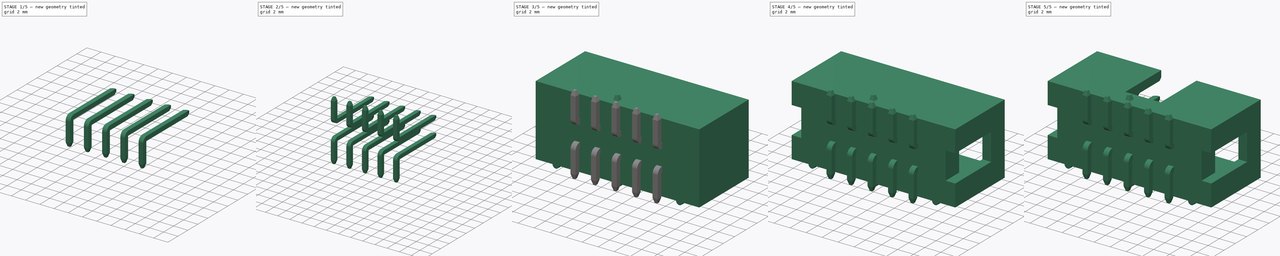
[diagram: build sequence overview — one tinted view per stage of 5, left to right]
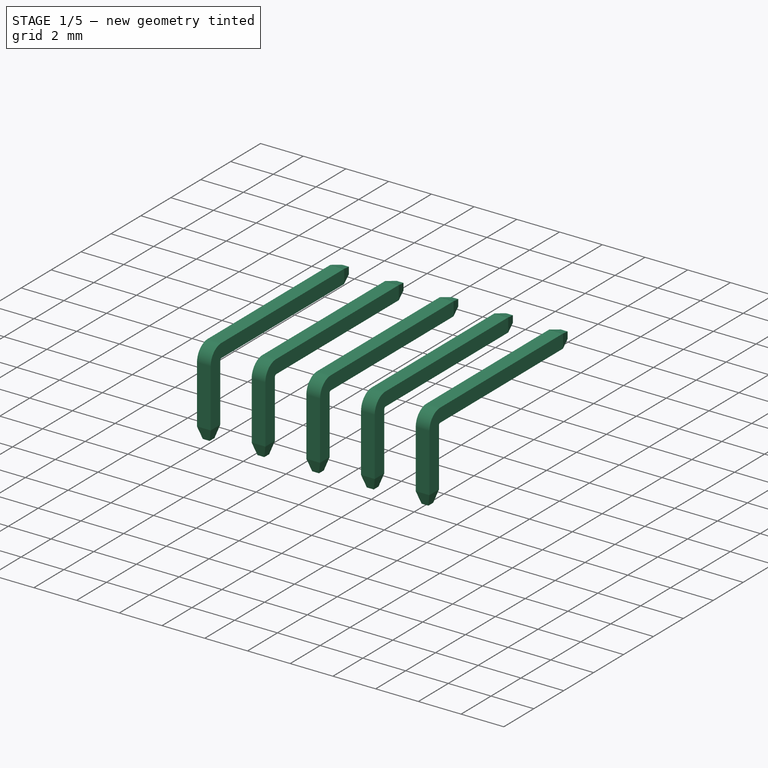
[diagram: stage 1 of 5 — iso view after this stage's code; geometry added in this stage tinted green]
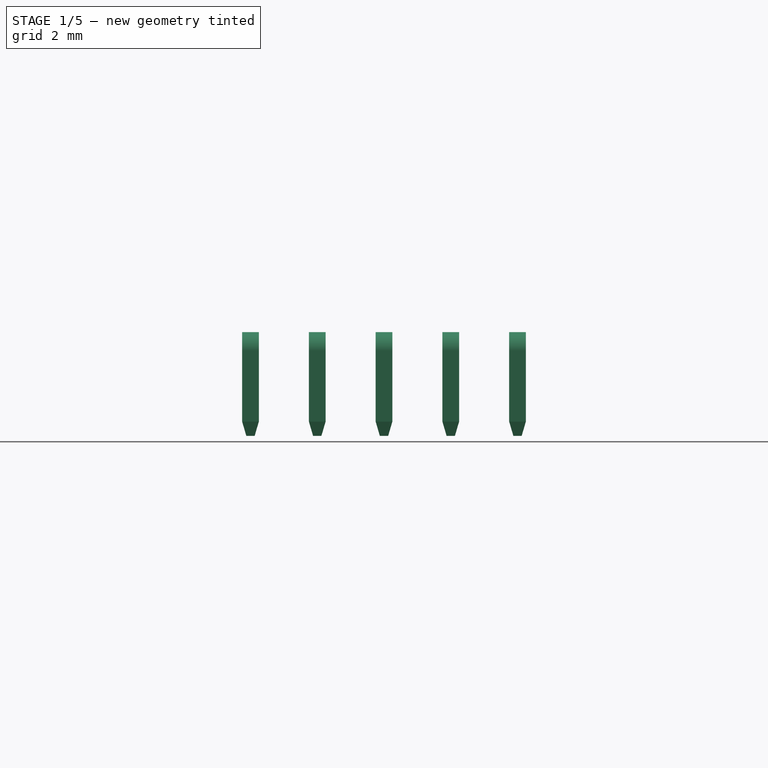
[diagram: stage 1 of 5 — front view after this stage's code; geometry added in this stage tinted green]
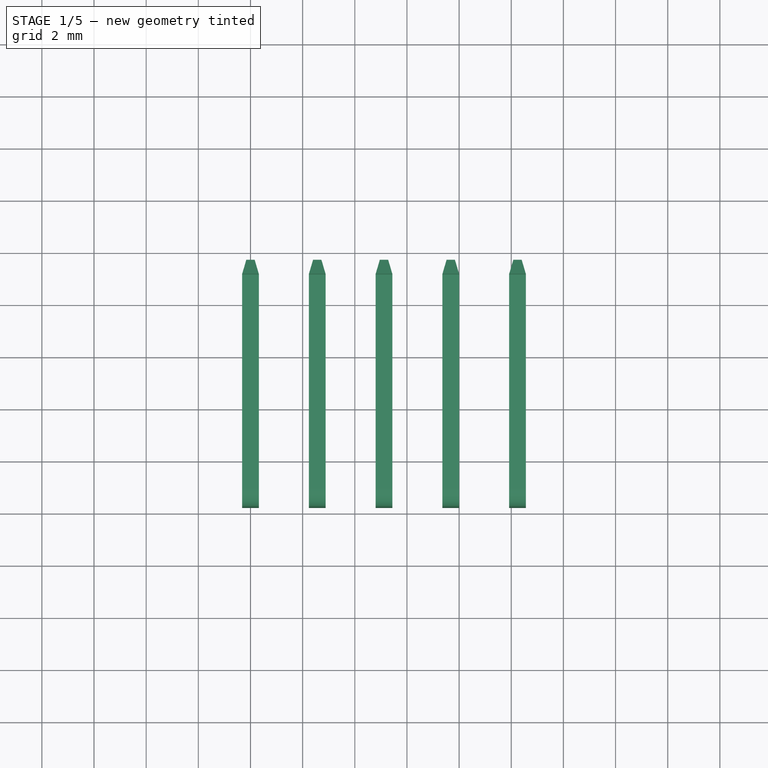
[diagram: stage 1 of 5 — top view after this stage's code; geometry added in this stage tinted green]
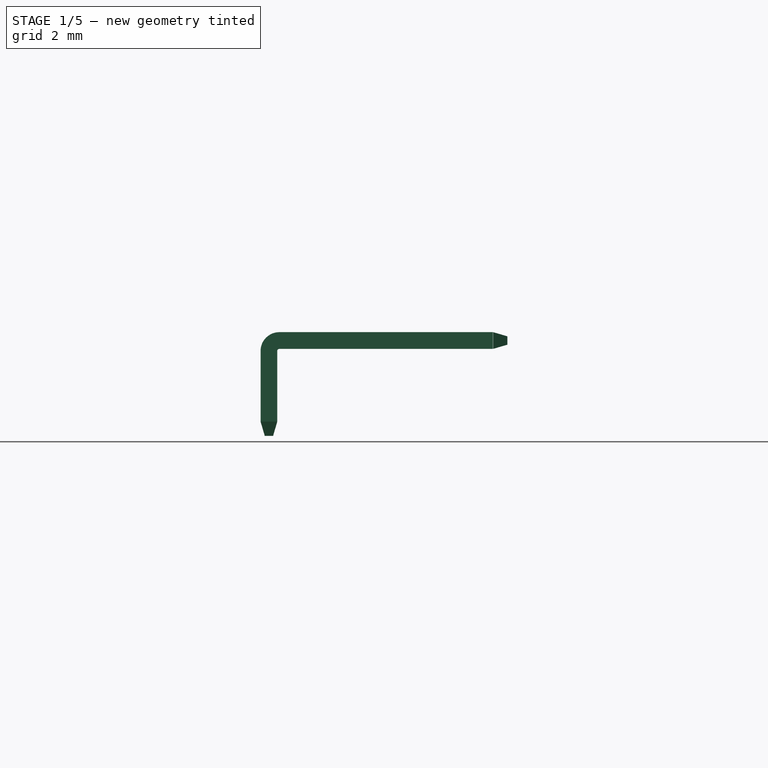
[diagram: stage 1 of 5 — right view after this stage's code; geometry added in this stage tinted green]
FCSTD DOCUMENT  (FreeCAD 0.16R5262 (Git))
Label: 2x5-pin-box-header-right-angle-short
License: CreativeCommons Attribution-ShareAlike
LicenseURL: http://creativecommons.org/licenses/by-sa/4.0/
objects: Sketcher::SketchObject×10, PartDesign::Pocket×4, Part::Feature×4, Part::MultiFuse×3, Part::FeaturePython×3, PartDesign::Pad×2, App::DocumentObjectGroup×2, Part::Chamfer×1, Part::Loft×1, Part::Sweep×1
note: 35 computed .brp shape members not serialized (recipe doc carries the construction recipe); baked Part::Feature solids carry a one-line shape summary decoded from their .brp

FEATURE [Part::Feature] Loft003  label="pin-end003"
  Placement = pos=(0,8.6,6.46) rot=(-1,0,0;1.5708rad)
  shape: bbox 0.64 x 0.546 x 0.64 mm, 6 faces (baked)
FEATURE [Part::Feature] Loft004  label="pin-end004"
  Placement = pos=(0,0,3.35) rot=(1,0,0;3.14159rad)
  shape: bbox 0.64 x 0.64 x 0.546 mm, 6 faces (baked)
FEATURE [Sketcher::SketchObject] Sketch010  label="bottom-pin-path"
  Placement = pos=(0,0,0) rot=(0.57735,0.57735,0.57735;2.0944rad)
  sketch-geometry (3):
    g0: LineSegment StartX=0.4 StartY=6.46 StartZ=0 EndX=8.6 EndY=6.46 EndZ=0
    g1: ArcOfCircle CenterX=0.4 CenterY=6.06 CenterZ=0 NormalX=0 NormalY=0 NormalZ=1 Radius=0.4 StartAngle=1.5708 EndAngle=3.14159
    g2: LineSegment StartX=0 StartY=6.06 StartZ=0 EndX=0 EndY=3.36 EndZ=0
  constraints (10):
    c: Horizontal(g0)
    c: Tangent(g0,g1)
    c: Radius(g1) = 0.4
    c: DistanceY(g-1,g0) = 6.46
    c: DistanceX(g0) = 8.2
    c: Coincident(g2,g1)
    c: Vertical(g2)
    c: PointOnObject(g2,g-2)
    c: DistanceY(g2) = -2.7
    c: DistanceY(g1) = 6.06
FEATURE [Part::Sweep] Sweep001  label="bottom-pin-main"
  Frenet = true
  Sections = -> [Sketch006]
  Solid = true
  Spine = -> Sketch010
  Transition = 1
FEATURE [Part::MultiFuse] Fusion001  label="bottom-pin-master-src"
  Placement = pos=(0,2.54,0) rot=(0,0,1;0rad)
  Shapes = -> [Loft004,Sweep001,Loft003]
FEATURE [App::DocumentObjectGroup] Group001  label="pin-src"
  Group = -> [Loft,Sketch010,Fusion001]
FEATURE [Part::FeaturePython] Array  # Draft array (typed FeaturePython)
  Angle = 360
  ArrayType = 0
  Axis = (0,0,1)
  Base = -> Fusion001
  Center = (0,0,0)
  Fuse = false
  IntervalAxis = (0,0,0)
  IntervalX = (2.56,0,0)
  IntervalY = (0,1,0)
  IntervalZ = (0,0,0)
  NumberPolar = 1
  NumberX = 5
  NumberY = 1
  NumberZ = 1
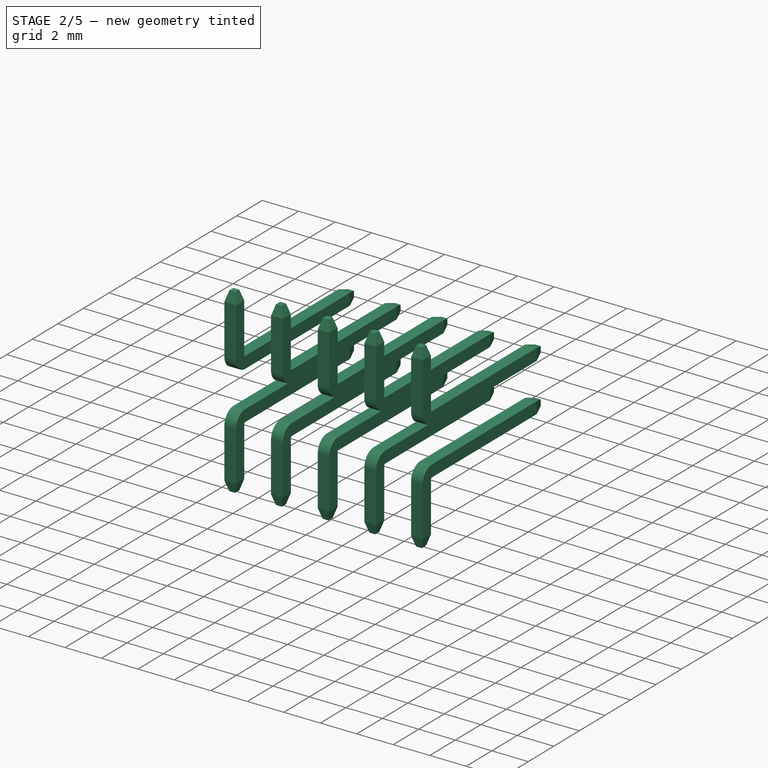
[diagram: stage 2 of 5 — iso view after this stage's code; geometry added in this stage tinted green]
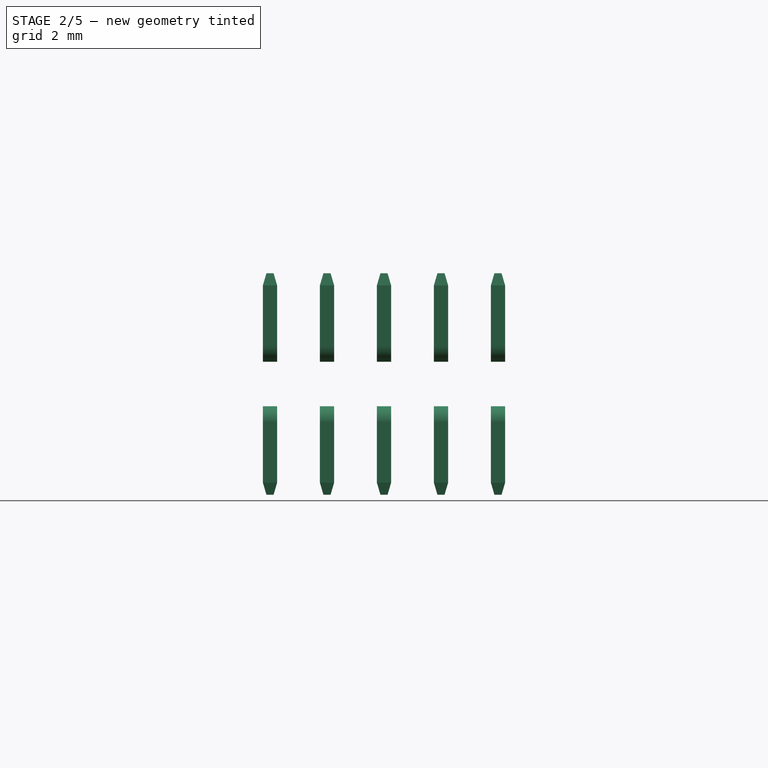
[diagram: stage 2 of 5 — front view after this stage's code; geometry added in this stage tinted green]
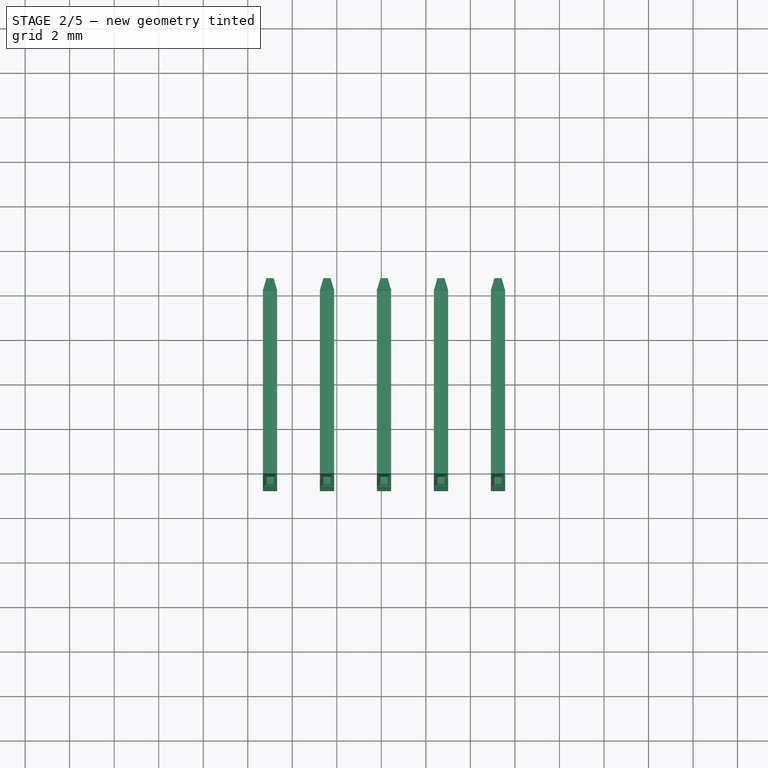
[diagram: stage 2 of 5 — top view after this stage's code; geometry added in this stage tinted green]
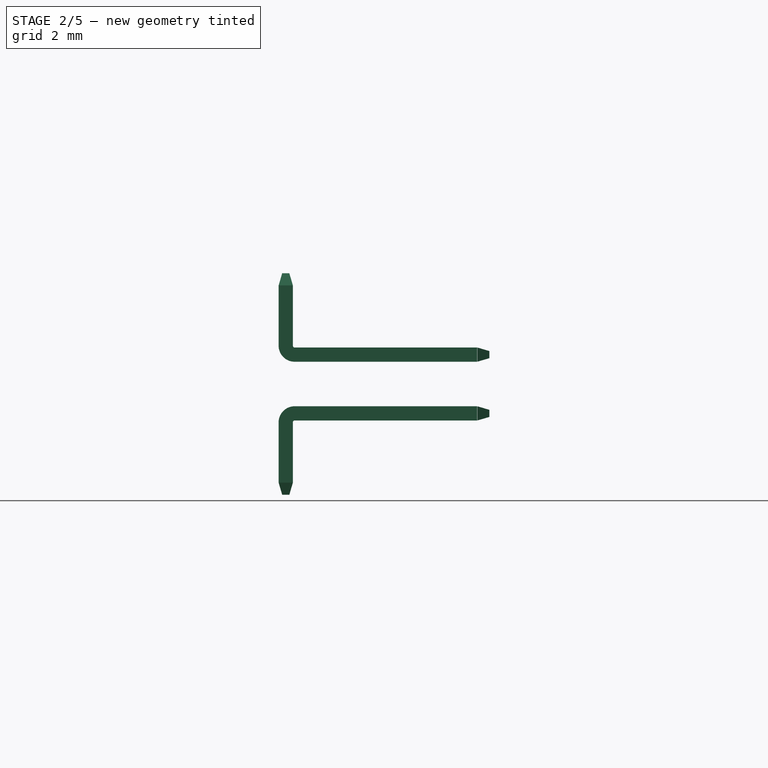
[diagram: stage 2 of 5 — right view after this stage's code; geometry added in this stage tinted green]
FEATURE [Part::FeaturePython] Clone  label="Clone of Array"  # Draft clone (typed FeaturePython)
  Objects = -> [Array]
  Placement = pos=(10.24,0,15.56) rot=(0,1,0;3.14159rad)
  Scale = (1,1,1)
FEATURE [Part::MultiFuse] Fusion  label="2x5_"
  Shapes = -> [Array,Clone]
FEATURE [Part::FeaturePython] Clone001  label="Clone of 2x5_"  # Draft clone (typed FeaturePython)
  Objects = -> [Fusion]
  Placement = pos=(-5,-3,-7.8) rot=(0,0,1;0rad)
  Scale = (1,1,1)
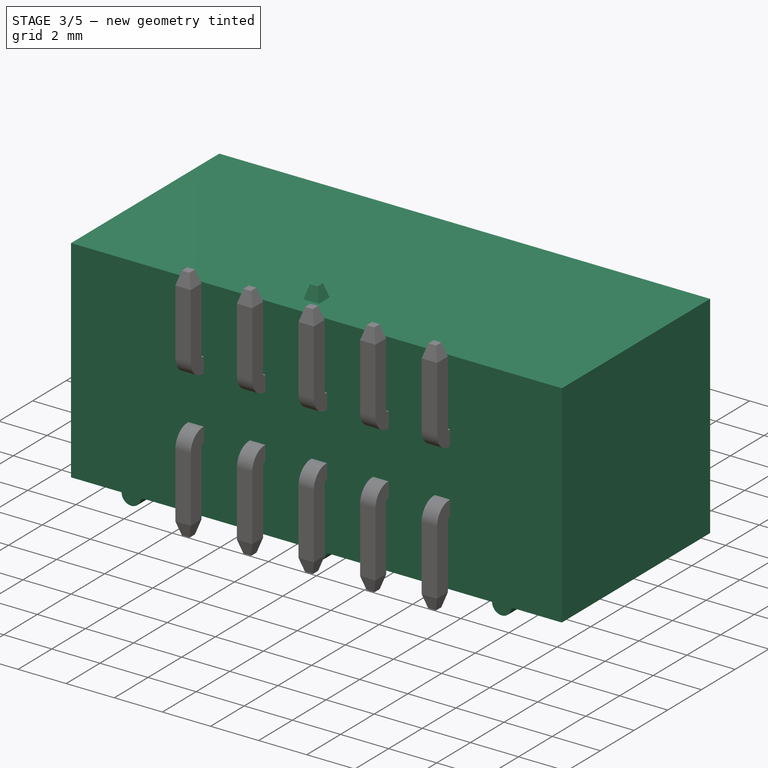
[diagram: stage 3 of 5 — iso view after this stage's code; geometry added in this stage tinted green]
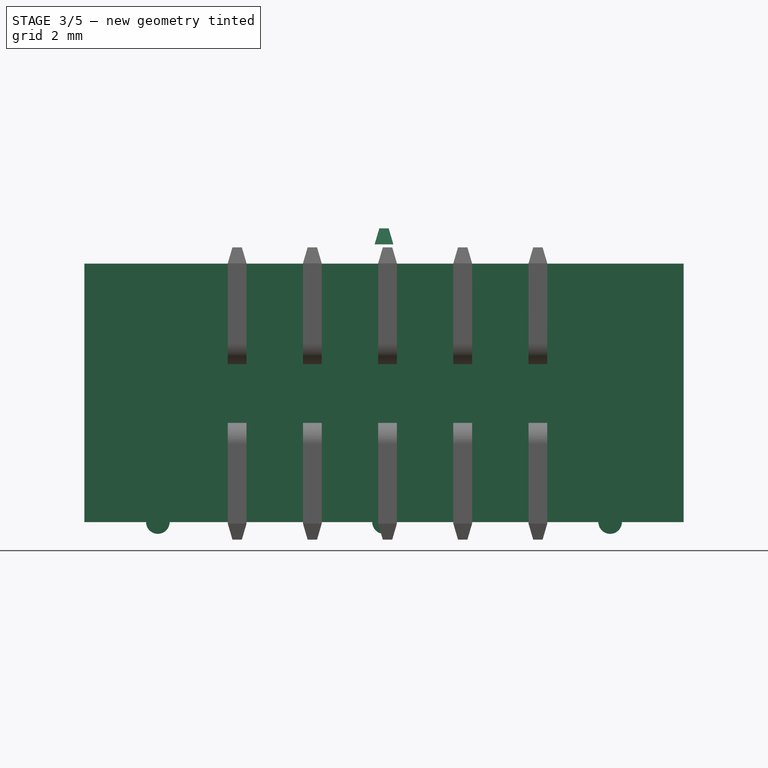
[diagram: stage 3 of 5 — front view after this stage's code; geometry added in this stage tinted green]
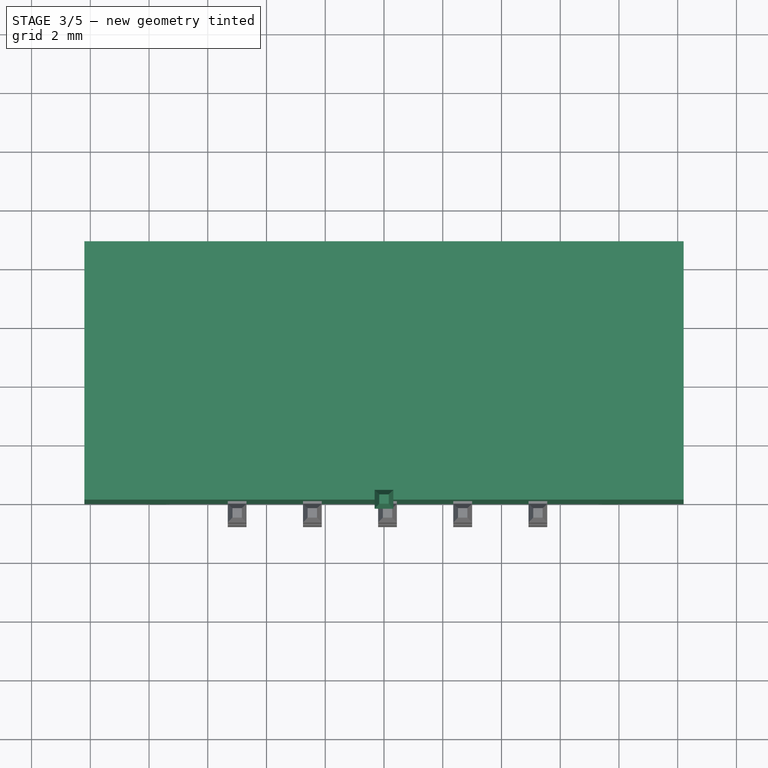
[diagram: stage 3 of 5 — top view after this stage's code; geometry added in this stage tinted green]
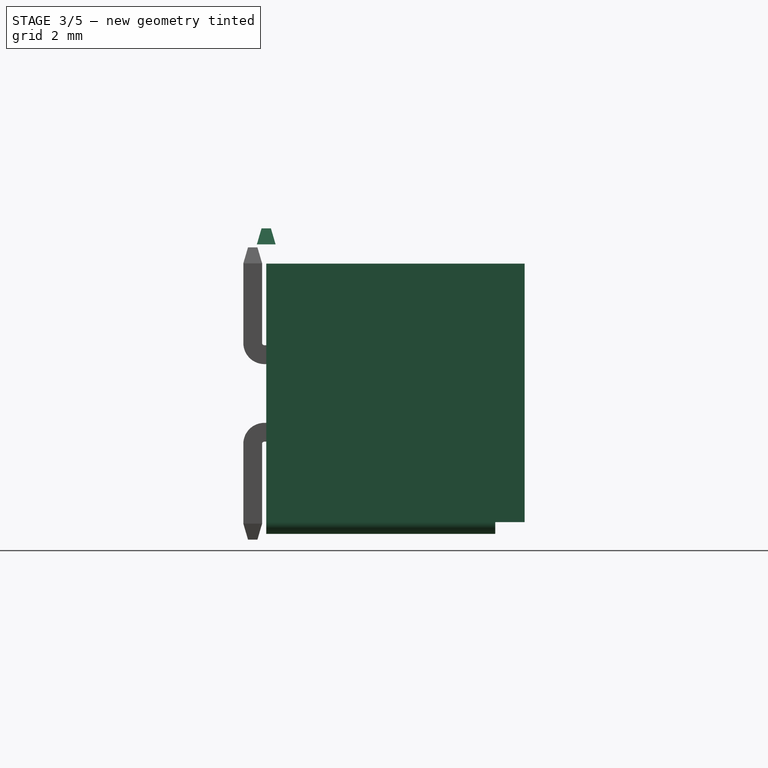
[diagram: stage 3 of 5 — right view after this stage's code; geometry added in this stage tinted green]
FEATURE [Sketcher::SketchObject] Sketch001  label="main-body-sketch"
  Placement = pos=(0,0,0) rot=(-1,0,0;1.5708rad)
  sketch-geometry (4):
    g0: LineSegment StartX=-10.2 StartY=4.4 StartZ=0 EndX=10.2 EndY=4.4 EndZ=0
    g1: LineSegment StartX=10.2 StartY=4.4 StartZ=0 EndX=10.2 EndY=-4.4 EndZ=0
    g2: LineSegment StartX=10.2 StartY=-4.4 StartZ=0 EndX=-10.2 EndY=-4.4 EndZ=0
    g3: LineSegment StartX=-10.2 StartY=-4.4 StartZ=0 EndX=-10.2 EndY=4.4 EndZ=0
  constraints (11):
    c: Coincident(g0,g1)
    c: Coincident(g1,g2)
    c: Coincident(g2,g3)
    c: Coincident(g3,g0)
    c: Horizontal(g0)
    c: Horizontal(g2)
    c: Vertical(g1)
    c: Vertical(g3)
    c: Symmetric(g0,g1,g-1)
    c: DistanceX(g0) = 20.4
    c: DistanceY(g3) = 8.8
FEATURE [PartDesign::Pad] Pad  label="main-body"
  Length = 8.8
  Length2 = 100
  Placement = pos=(0,0,0) rot=(-1,0,0;1.5708rad)
  Sketch = -> Sketch001
  Type = 0
FEATURE [App::DocumentObjectGroup] Group  label="box-src"
  Group = -> [Pad,Pocket,Pocket001,Pocket002,Chamfer,Pad001]
FEATURE [Part::Feature] Pad001001  label="box"
  shape: bbox 20.4 x 8.8 x 9.2 mm, 33 faces (baked)
FEATURE [Sketcher::SketchObject] Sketch006  label="pin-base-sketch"
  Placement = pos=(0,0,3.35) rot=(0,0,1;0rad)
  sketch-geometry (4):
    g0: LineSegment StartX=-0.32 StartY=0.32 StartZ=0 EndX=0.32 EndY=0.32 EndZ=0
    g1: LineSegment StartX=0.32 StartY=0.32 StartZ=0 EndX=0.32 EndY=-0.32 EndZ=0
    g2: LineSegment StartX=0.32 StartY=-0.32 StartZ=0 EndX=-0.32 EndY=-0.32 EndZ=0
    g3: LineSegment StartX=-0.32 StartY=-0.32 StartZ=0 EndX=-0.32 EndY=0.32 EndZ=0
  constraints (11):
    c: Coincident(g0,g1)
    c: Coincident(g1,g2)
    c: Coincident(g2,g3)
    c: Coincident(g3,g0)
    c: Horizontal(g0)
    c: Horizontal(g2)
    c: Vertical(g1)
    c: Vertical(g3)
    c: Symmetric(g0,g1,g-1)
    c: Equal(g0,g3)
    c: DistanceX(g0) = 0.64
FEATURE [Sketcher::SketchObject] Sketch008  label="pin-end-bottom-base-sketch"
  sketch-geometry (4):
    g0: LineSegment StartX=-0.32 StartY=0.32 StartZ=0 EndX=0.32 EndY=0.32 EndZ=0
    g1: LineSegment StartX=0.32 StartY=0.32 StartZ=0 EndX=0.32 EndY=-0.32 EndZ=0
    g2: LineSegment StartX=0.32 StartY=-0.32 StartZ=0 EndX=-0.32 EndY=-0.32 EndZ=0
    g3: LineSegment StartX=-0.32 StartY=-0.32 StartZ=0 EndX=-0.32 EndY=0.32 EndZ=0
  constraints (11):
    c: Coincident(g0,g1)
    c: Coincident(g1,g2)
    c: Coincident(g2,g3)
    c: Coincident(g3,g0)
    c: Horizontal(g0)
    c: Horizontal(g2)
    c: Vertical(g1)
    c: Vertical(g3)
    c: Symmetric(g0,g1,g-1)
    c: Equal(g0,g3)
    c: DistanceX(g0) = 0.64
FEATURE [Sketcher::SketchObject] Sketch009  label="pin-end-top-base-sketch"
  Placement = pos=(0,0,0.546) rot=(0,0,1;0rad)
  sketch-geometry (4):
    g0: LineSegment StartX=-0.16 StartY=0.16 StartZ=0 EndX=0.16 EndY=0.16 EndZ=0
    g1: LineSegment StartX=0.16 StartY=0.16 StartZ=0 EndX=0.16 EndY=-0.16 EndZ=0
    g2: LineSegment StartX=0.16 StartY=-0.16 StartZ=0 EndX=-0.16 EndY=-0.16 EndZ=0
    g3: LineSegment StartX=-0.16 StartY=-0.16 StartZ=0 EndX=-0.16 EndY=0.16 EndZ=0
  constraints (11):
    c: Coincident(g0,g1)
    c: Coincident(g1,g2)
    c: Coincident(g2,g3)
    c: Coincident(g3,g0)
    c: Horizontal(g0)
    c: Horizontal(g2)
    c: Vertical(g1)
    c: Vertical(g3)
    c: Symmetric(g0,g1,g-1)
    c: Equal(g0,g3)
    c: DistanceX(g0) = 0.32
FEATURE [Part::Loft] Loft  label="pin-end"
  Closed = false
  Placement = pos=(0,0,5.054) rot=(0,0,1;0rad)
  Ruled = false
  Sections = -> [Sketch008,Sketch009]
  Solid = true
FEATURE [Part::MultiFuse] Fusion002  label="2x5-pin-box-headers-male-rigth-angle-short"
  Shapes = -> [Pad001001,Clone001]
FEATURE [Part::Feature] Fusion002001  label="2x5-pin-box-headers-male-rigth-angle-short001"
  shape: bbox 20.4 x 9.58 x 9.952 mm, 273 faces, 11 solids (baked)
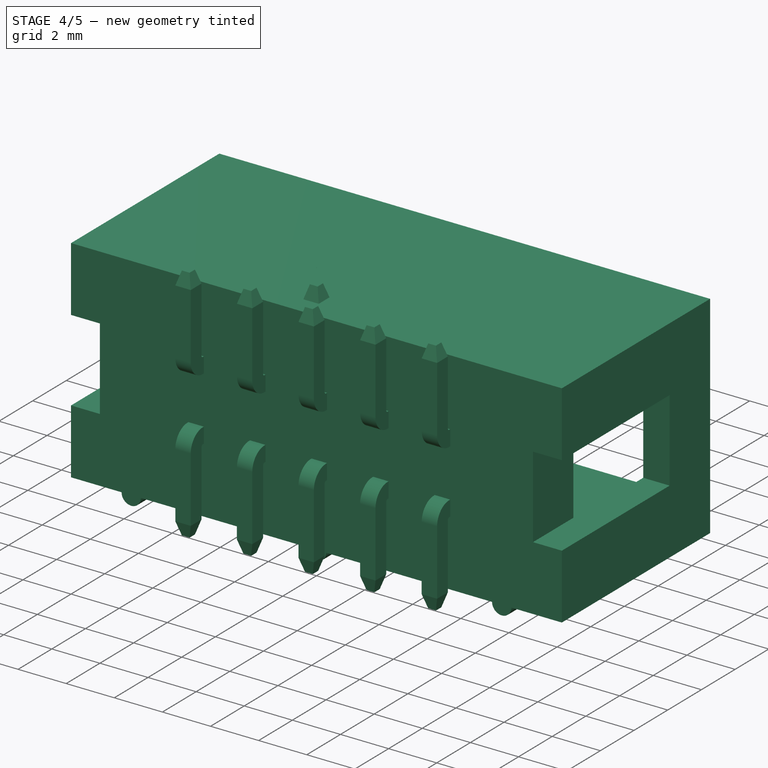
[diagram: stage 4 of 5 — iso view after this stage's code; geometry added in this stage tinted green]
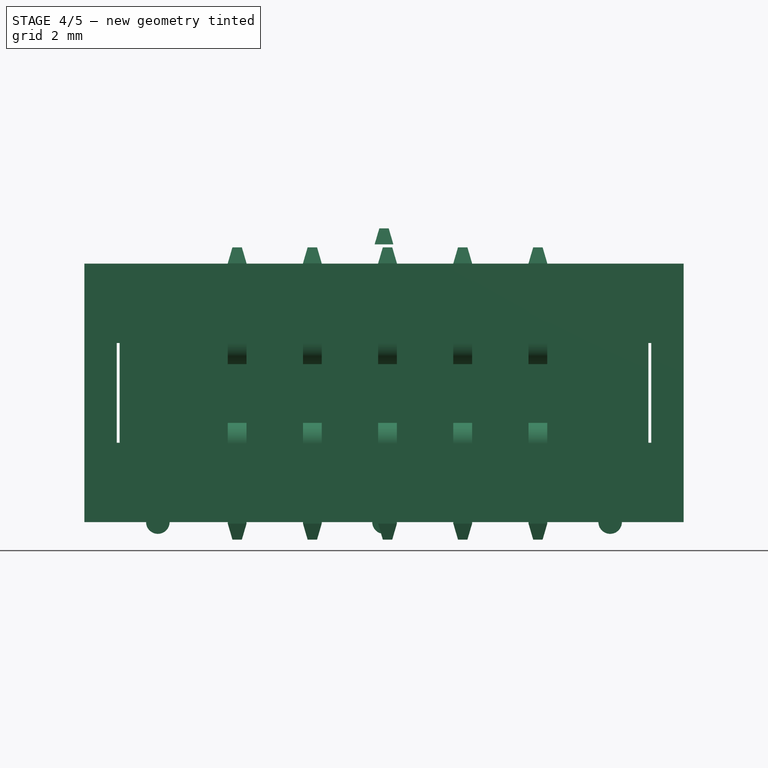
[diagram: stage 4 of 5 — front view after this stage's code; geometry added in this stage tinted green]
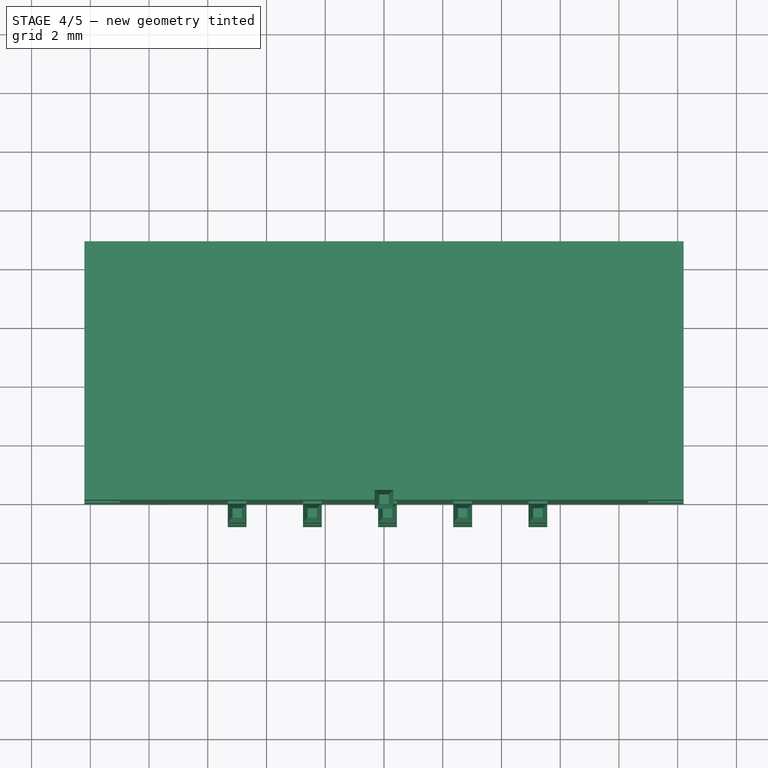
[diagram: stage 4 of 5 — top view after this stage's code; geometry added in this stage tinted green]
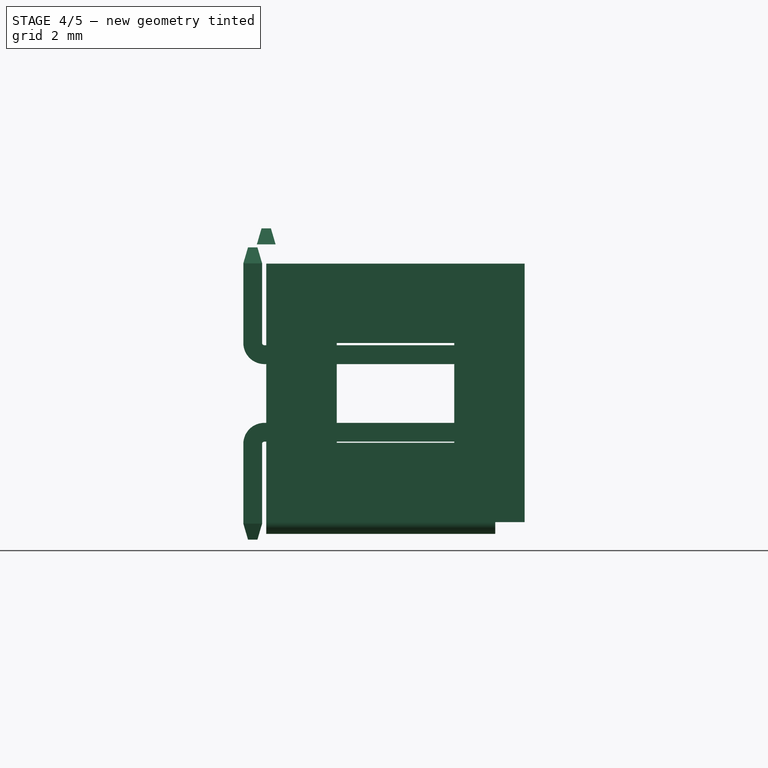
[diagram: stage 4 of 5 — right view after this stage's code; geometry added in this stage tinted green]
FEATURE [Sketcher::SketchObject] Sketch  label="fontal-cutout-1-sketch"
  ExternalGeometry = -> [Pad]
  Placement = pos=(0,8.8,0) rot=(-1,0,0;1.5708rad)
  Support = -> Pad [Face6]
  sketch-geometry (5):
    g0: LineSegment StartX=-9.1 StartY=3.3 StartZ=0 EndX=9.1 EndY=3.3 EndZ=0
    g1: LineSegment StartX=9.1 StartY=3.3 StartZ=0 EndX=9.1 EndY=-3.3 EndZ=0
    g2: LineSegment StartX=9.1 StartY=-3.3 StartZ=0 EndX=-9.1 EndY=-3.3 EndZ=0
    g3: LineSegment StartX=-9.1 StartY=-3.3 StartZ=0 EndX=-9.1 EndY=3.3 EndZ=0
    g4: LineSegment [constr] StartX=-10.2 StartY=4.4 StartZ=0 EndX=-9.1 EndY=3.3 EndZ=0
  constraints (13):
    c: Coincident(g0,g1)
    c: Coincident(g1,g2)
    c: Coincident(g2,g3)
    c: Coincident(g3,g0)
    c: Horizontal(g0)
    c: Horizontal(g2)
    c: Vertical(g1)
    c: Vertical(g3)
    c: Symmetric(g0,g1,g-1)
    c: Coincident(g4,g-4)
    c: Coincident(g4,g0)
    c: Angle(g4,g-3) = 0.785398
    c: DistanceX(g0,g4) = -1.1
FEATURE [PartDesign::Pocket] Pocket  label="frontal-cutout-1"
  Length = 6.4
  Placement = pos=(0,0,0) rot=(-1,0,0;1.5708rad)
  Sketch = -> Sketch
  Type = 0
FEATURE [Sketcher::SketchObject] Sketch002  label="side-cutout-2-sketch"
  Placement = pos=(10.2,0,0) rot=(0,1,0;1.5708rad)
  Support = -> Pocket [Face3]
  sketch-geometry (4):
    g0: LineSegment StartX=-1.7 StartY=6.4 StartZ=0 EndX=1.7 EndY=6.4 EndZ=0
    g1: LineSegment StartX=1.7 StartY=6.4 StartZ=0 EndX=1.7 EndY=0 EndZ=0
    g2: LineSegment StartX=1.7 StartY=0 StartZ=0 EndX=-1.7 EndY=0 EndZ=0
    g3: LineSegment StartX=-1.7 StartY=0 StartZ=0 EndX=-1.7 EndY=6.4 EndZ=0
  constraints (11):
    c: Coincident(g0,g1)
    c: Coincident(g1,g2)
    c: Coincident(g2,g3)
    c: Coincident(g3,g0)
    c: Horizontal(g0)
    c: Horizontal(g2)
    c: Vertical(g1)
    c: Vertical(g3)
    c: Symmetric(g0,g0,g-2)
    c: DistanceX(g0) = 3.4
    c: PointOnObject(g1,g-1)
FEATURE [PartDesign::Pocket] Pocket001  label="side-cutout-2"
  Length = 1.2
  Placement = pos=(0,0,0) rot=(-1,0,0;1.5708rad)
  Sketch = -> Sketch002
  Type = 0
FEATURE [Sketcher::SketchObject] Sketch003  label="side-cutout-3-sketch"
  Placement = pos=(-10.2,0,0) rot=(0,-1,0;1.5708rad)
  Support = -> Pocket001 [Face2]
  sketch-geometry (4):
    g0: LineSegment StartX=-1.7 StartY=6.4 StartZ=0 EndX=1.7 EndY=6.4 EndZ=0
    g1: LineSegment StartX=1.7 StartY=6.4 StartZ=0 EndX=1.7 EndY=0 EndZ=0
    g2: LineSegment StartX=1.7 StartY=0 StartZ=0 EndX=-1.7 EndY=0 EndZ=0
    g3: LineSegment StartX=-1.7 StartY=0 StartZ=0 EndX=-1.7 EndY=6.4 EndZ=0
  constraints (11):
    c: Coincident(g0,g1)
    c: Coincident(g1,g2)
    c: Coincident(g2,g3)
    c: Coincident(g3,g0)
    c: Horizontal(g0)
    c: Horizontal(g2)
    c: Vertical(g1)
    c: Vertical(g3)
    c: Symmetric(g0,g0,g-2)
    c: PointOnObject(g2,g-1)
    c: DistanceX(g0,g0) = 3.4
FEATURE [PartDesign::Pocket] Pocket002  label="side-cutout-3"
  Length = 1.2
  Placement = pos=(0,0,0) rot=(-1,0,0;1.5708rad)
  Sketch = -> Sketch003
  Type = 0
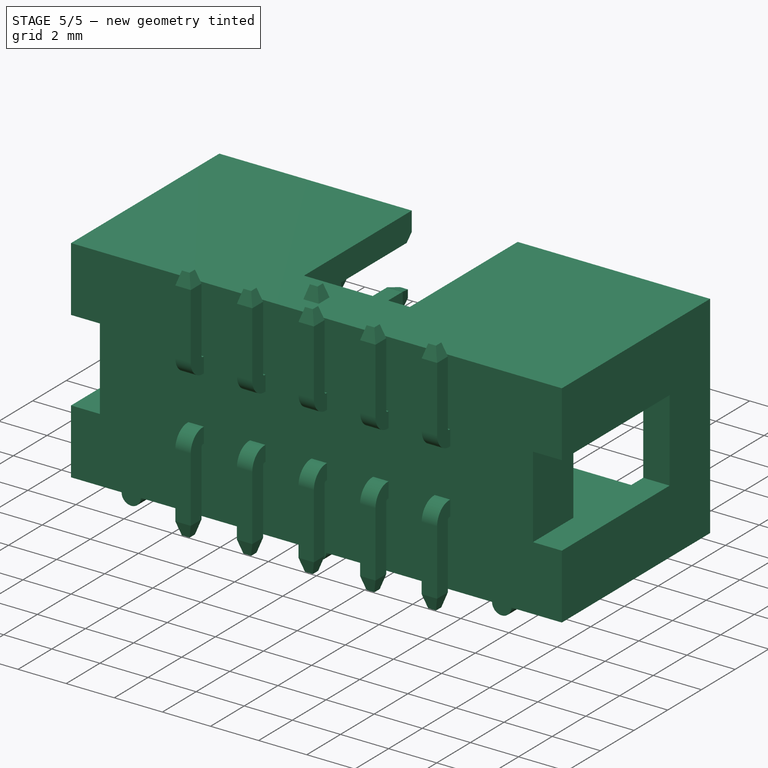
[diagram: stage 5 of 5 — iso view after this stage's code; geometry added in this stage tinted green]
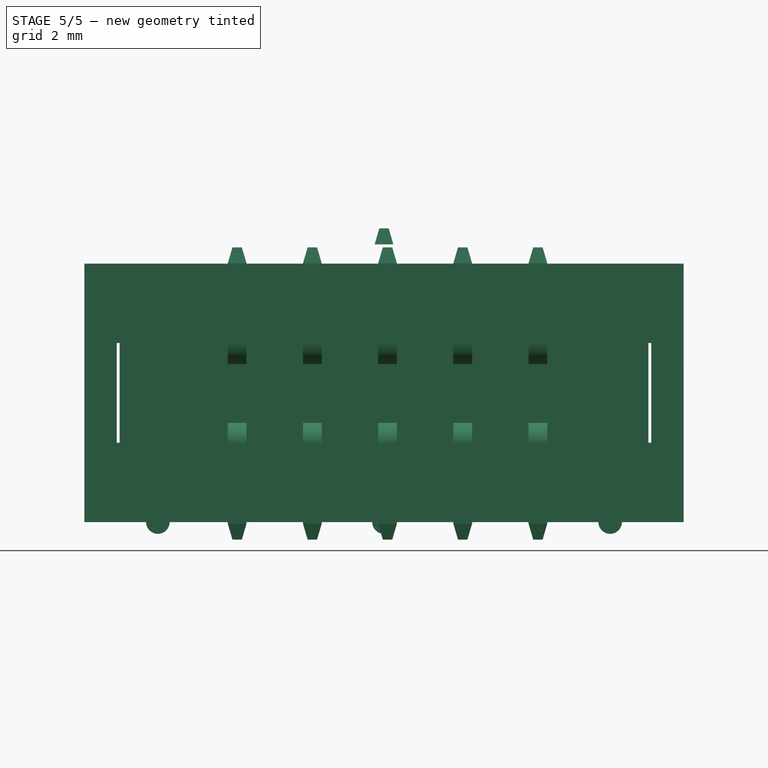
[diagram: stage 5 of 5 — front view after this stage's code; geometry added in this stage tinted green]
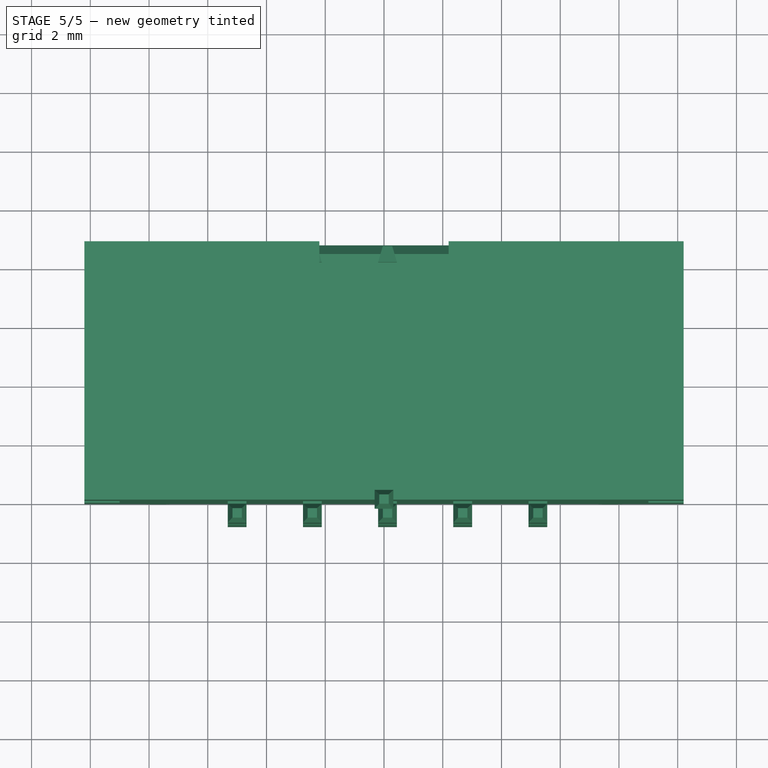
[diagram: stage 5 of 5 — top view after this stage's code; geometry added in this stage tinted green]
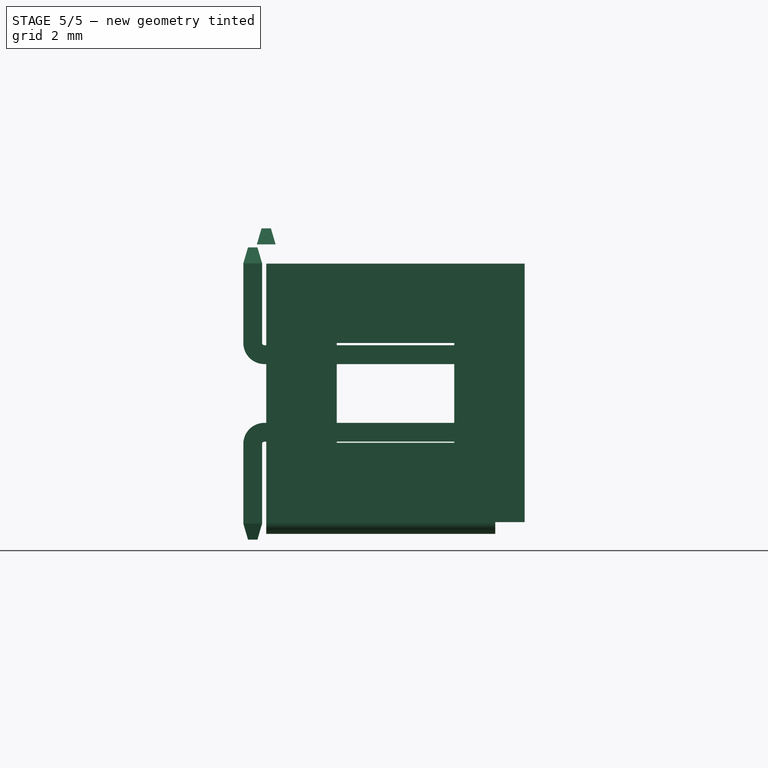
[diagram: stage 5 of 5 — right view after this stage's code; geometry added in this stage tinted green]
FEATURE [Sketcher::SketchObject] Sketch004  label="top-cutout-4-sketch"
  Placement = pos=(0,0,4.4) rot=(0,0,1;0rad)
  Support = -> Pocket002 [Face9]
  sketch-geometry (7):
    g0: LineSegment [constr] StartX=-2.2 StartY=8.8 StartZ=0 EndX=2.2 EndY=8.8 EndZ=0
    g1: LineSegment StartX=2.2 StartY=8.8 StartZ=0 EndX=2.2 EndY=2.4 EndZ=0
    g2: LineSegment StartX=2.2 StartY=2.4 StartZ=0 EndX=-2.2 EndY=2.4 EndZ=0
    g3: LineSegment StartX=-2.2 StartY=2.4 StartZ=0 EndX=-2.2 EndY=8.8 EndZ=0
    g4: LineSegment StartX=-2.2 StartY=9.8 StartZ=0 EndX=2.2 EndY=9.8 EndZ=0
    g5: LineSegment StartX=2.2 StartY=9.8 StartZ=0 EndX=2.2 EndY=8.8 EndZ=0
    g6: LineSegment StartX=-2.2 StartY=8.8 StartZ=0 EndX=-2.2 EndY=9.8 EndZ=0
  constraints (18):
    c: Coincident(g0,g1)
    c: Coincident(g1,g2)
    c: Coincident(g2,g3)
    c: Coincident(g3,g0)
    c: Horizontal(g0)
    c: Horizontal(g2)
    c: Vertical(g1)
    c: Vertical(g3)
    c: Symmetric(g0,g0,g-2)
    c: DistanceX(g2) = -4.4
    c: Coincident(g4,g5)
    c: Coincident(g6,g4)
    c: Horizontal(g4)
    c: Vertical(g5)
    c: Vertical(g6)
    c: Coincident(g6,g0)
    c: Coincident(g5,g0)
    c: DistanceY(g5) = -1
FEATURE [PartDesign::Pocket] Pocket003  label="top-cutout-4"
  Length = 3
  Placement = pos=(0,0,0) rot=(-1,0,0;1.5708rad)
  Sketch = -> Sketch004
  Type = 0
FEATURE [Part::Chamfer] Chamfer
  Base = -> Pocket003
  Edges = 5 edges r=0.3: [Edge28,Edge29,Edge30,Edge31,Edge32]
FEATURE [Sketcher::SketchObject] Sketch005  label="bottom-cylinders-sketch"
  ExternalGeometry = -> [Chamfer]
  Placement = pos=(0,0,0) rot=(1,0,0;1.5708rad)
  Support = -> Chamfer [Face15]
  sketch-geometry (3):
    g0: Circle CenterX=7.7 CenterY=-4.4 CenterZ=0 NormalX=0 NormalY=0 NormalZ=1 Radius=0.4
    g1: Circle CenterX=0 CenterY=-4.4 CenterZ=0 NormalX=0 NormalY=0 NormalZ=1 Radius=0.4
    g2: Circle CenterX=-7.7 CenterY=-4.4 CenterZ=0 NormalX=0 NormalY=0 NormalZ=1 Radius=0.4
  constraints (9):
    c: PointOnObject(g0,g-3)
    c: Radius(g0) = 0.4
    c: PointOnObject(g1,g-3)
    c: PointOnObject(g1,g-2)
    c: Equal(g1,g0)
    c: PointOnObject(g2,g-3)
    c: Symmetric(g2,g0,g-2)
    c: Equal(g2,g1)
    c: DistanceX(g0,g1) = -7.7
FEATURE [PartDesign::Pad] Pad001  label="bottom-cylinders"
  Length = 7.8
  Length2 = 100
  Reversed = true
  Sketch = -> Sketch005
  Type = 0
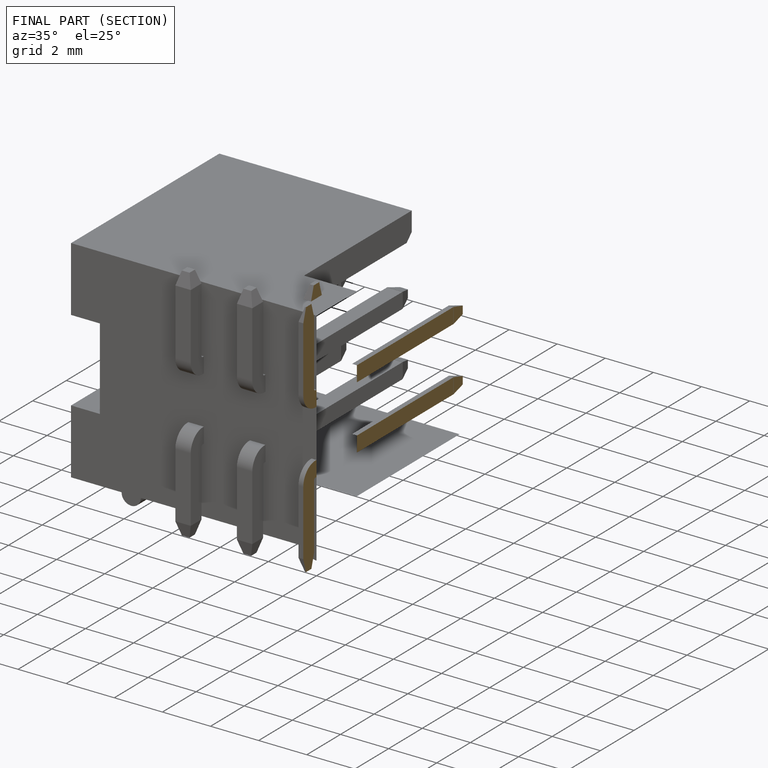
[diagram: finished part — half-section view (interior)]
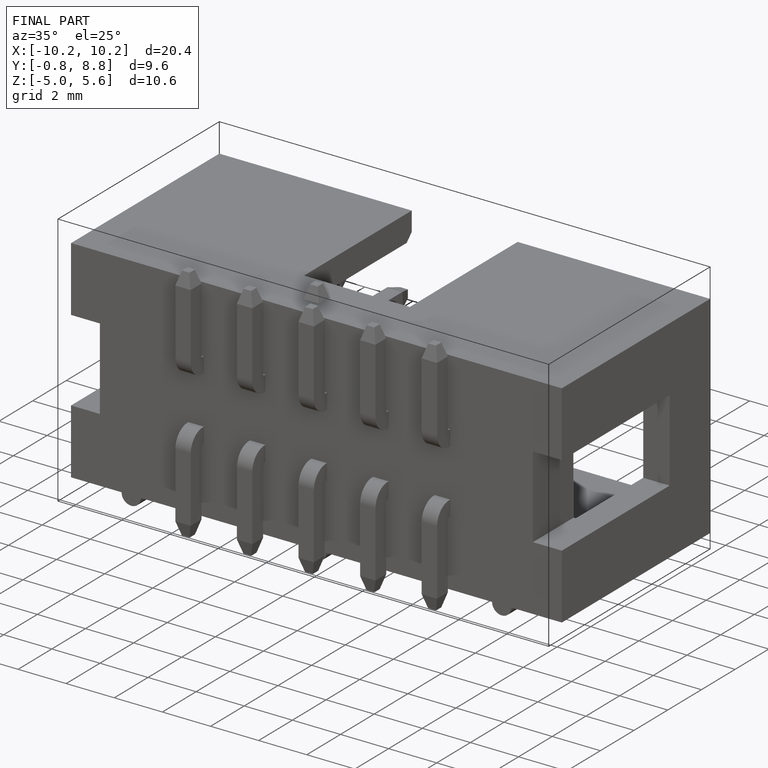
[diagram: finished part — iso view with bounding-box wireframe]
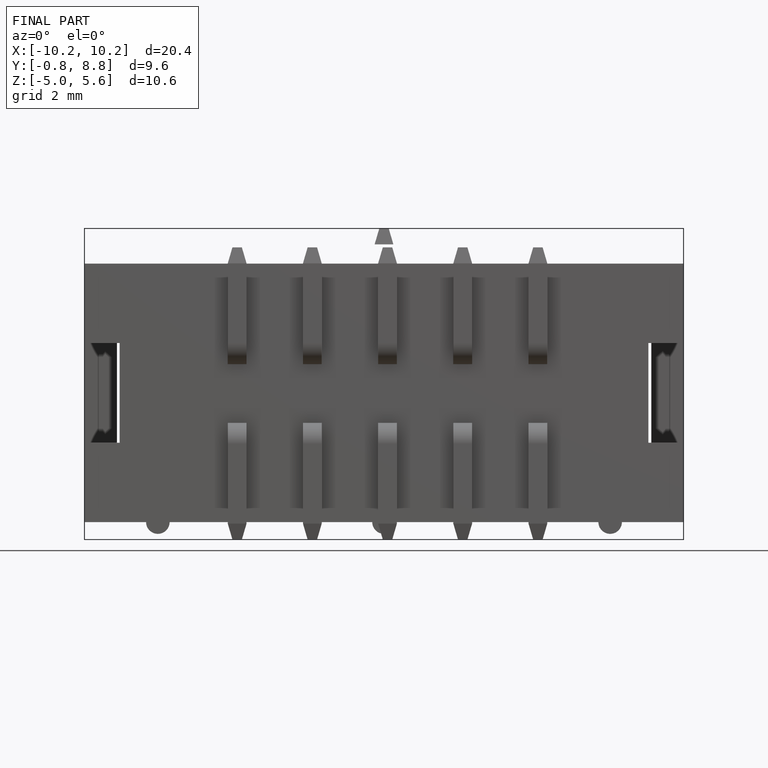
[diagram: finished part — front view with bounding-box wireframe]
